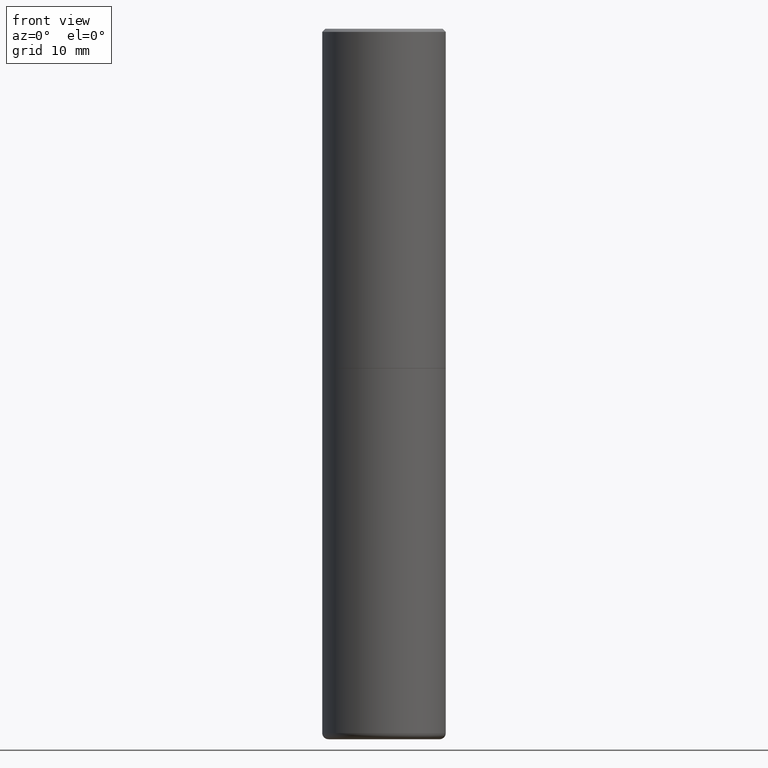
[diagram: clean part render]
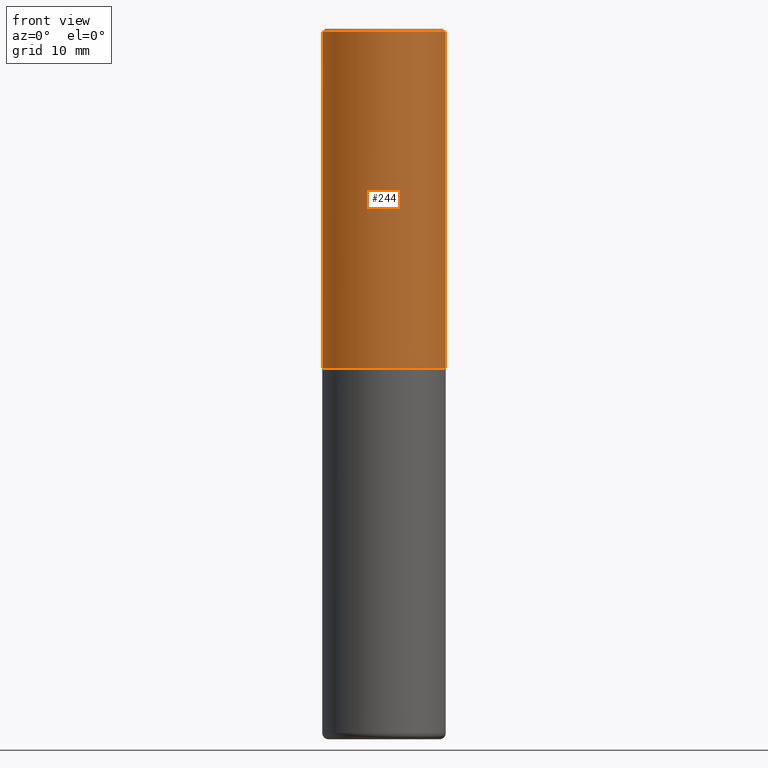
[diagram: same view with one face highlighted and labeled with its STEP entity id]
A machine part, front view. The second image highlights one B-rep face of the part: STEP entity #244.
In plain terms, the highlighted cylindrical surface (partial cylindrical patch) has radius 10 mm, axis along (-0, 0, 1).
Its self-contained STEP definition (entity closure, byte-faithful):
#1 = CIRCLE ( 'NONE', #263, 0.3937000000000002720 ) ;
#7 = CARTESIAN_POINT ( 'NONE',  ( 5.292972684107107621E-29, -7.556962209792102838E-15, -2.164399999999999658 ) ) ;
#27 = CARTESIAN_POINT ( 'NONE',  ( -0.3937000000000002164, 2.797406750687515970E-15, -1.936584745033357576E-29 ) ) ;
#35 = CIRCLE ( 'NONE', #251, 0.3937000000000001054 ) ;
#42 = DIRECTION ( 'NONE',  ( -2.445468806185136597E-29, 3.491481338843145583E-15, 1.000000000000000000 ) ) ;
#46 = ORIENTED_EDGE ( 'NONE', *, *, #66, .T. ) ;
#52 = VERTEX_POINT ( 'NONE', #172 ) ;
#55 = VERTEX_POINT ( 'NONE', #162 ) ;
#66 = EDGE_CURVE ( 'NONE', #307, #402, #232, .T. ) ;
#67 = DIRECTION ( 'NONE',  ( -2.445468806185136877E-29, 3.491481338843145188E-15, 1.000000000000000000 ) ) ;
#75 = CYLINDRICAL_SURFACE ( 'NONE', #285, 0.3937000000000002164 ) ;
#92 = DIRECTION ( 'NONE',  ( -2.445468806185136877E-29, 3.491481338843145188E-15, 1.000000000000000000 ) ) ;
#93 = DIRECTION ( 'NONE',  ( 1.000000000000000000, -6.982962677686266711E-15, 4.876176775795935793E-29 ) ) ;
#96 = DIRECTION ( 'NONE',  ( -2.445468806185136597E-29, 3.491481338843145583E-15, 1.000000000000000000 ) ) ;
#132 = ORIENTED_EDGE ( 'NONE', *, *, #164, .T. ) ;
#134 = VECTOR ( 'NONE', #92, 39.37007874015748143 ) ;
#152 = DIRECTION ( 'NONE',  ( -2.445468806185136597E-29, 3.491481338843145583E-15, 1.000000000000000000 ) ) ;
#162 = CARTESIAN_POINT ( 'NONE',  ( -0.3937000000000001054, 2.679362779428220707E-15, -0.02000000000000008715 ) ) ;
#164 = EDGE_CURVE ( 'NONE', #52, #307, #1, .T. ) ;
#172 = CARTESIAN_POINT ( 'NONE',  ( -0.3937000000000002720, -1.015989167596965718E-15, -2.164399999999999658 ) ) ;
#183 = CARTESIAN_POINT ( 'NONE',  ( 4.890937612370294178E-31, -6.982962677686321191E-17, -0.02000000000000008715 ) ) ;
#185 = DIRECTION ( 'NONE',  ( 1.000000000000000000, -6.982962677686266711E-15, 0.000000000000000000 ) ) ;
#198 = CARTESIAN_POINT ( 'NONE',  ( 0.000000000000000000, 0.000000000000000000, 0.000000000000000000 ) ) ;
#205 = ORIENTED_EDGE ( 'NONE', *, *, #366, .F. ) ;
#211 = ORIENTED_EDGE ( 'NONE', *, *, #418, .F. ) ;
#222 = LINE ( 'NONE', #27, #134 ) ;
#224 = DIRECTION ( 'NONE',  ( 1.000000000000000000, -6.982962677686269077E-15, 0.000000000000000000 ) ) ;
#232 = LINE ( 'NONE', #306, #329 ) ;
#244 = ADVANCED_FACE ( 'NONE', ( #368 ), #75, .T. ) ;
#251 = AXIS2_PLACEMENT_3D ( 'NONE', #183, #152, #185 ) ;
#263 = AXIS2_PLACEMENT_3D ( 'NONE', #7, #96, #224 ) ;
#285 = AXIS2_PLACEMENT_3D ( 'NONE', #198, #42, #93 ) ;
#306 = CARTESIAN_POINT ( 'NONE',  ( 0.3937000000000002164, -2.749192406205084794E-15, 1.919750796630861012E-29 ) ) ;
#307 = VERTEX_POINT ( 'NONE', #387 ) ;
#314 = EDGE_LOOP ( 'NONE', ( #211, #132, #46, #205 ) ) ;
#329 = VECTOR ( 'NONE', #67, 39.37007874015748143 ) ;
#362 = CARTESIAN_POINT ( 'NONE',  ( 0.3937000000000001054, -2.770807688499516128E-15, -0.02000000000000008715 ) ) ;
#366 = EDGE_CURVE ( 'NONE', #55, #402, #35, .T. ) ;
#368 = FACE_OUTER_BOUND ( 'NONE', #314, .T. ) ;
#387 = CARTESIAN_POINT ( 'NONE',  ( 0.3937000000000002720, -1.030615461599718763E-14, -2.164399999999999658 ) ) ;
#402 = VERTEX_POINT ( 'NONE', #362 ) ;
#418 = EDGE_CURVE ( 'NONE', #52, #55, #222, .T. ) ;